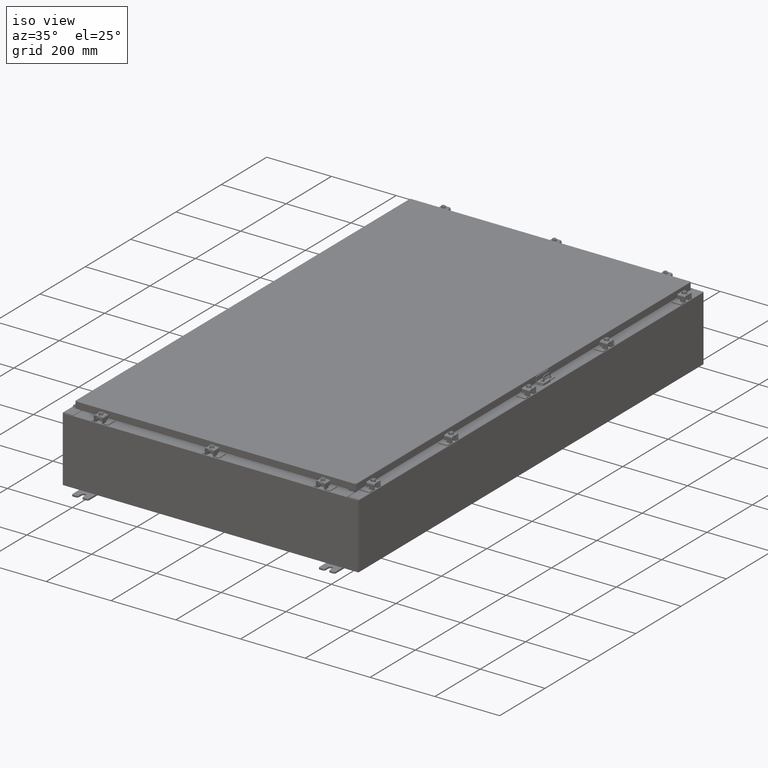
[diagram: clean part render]
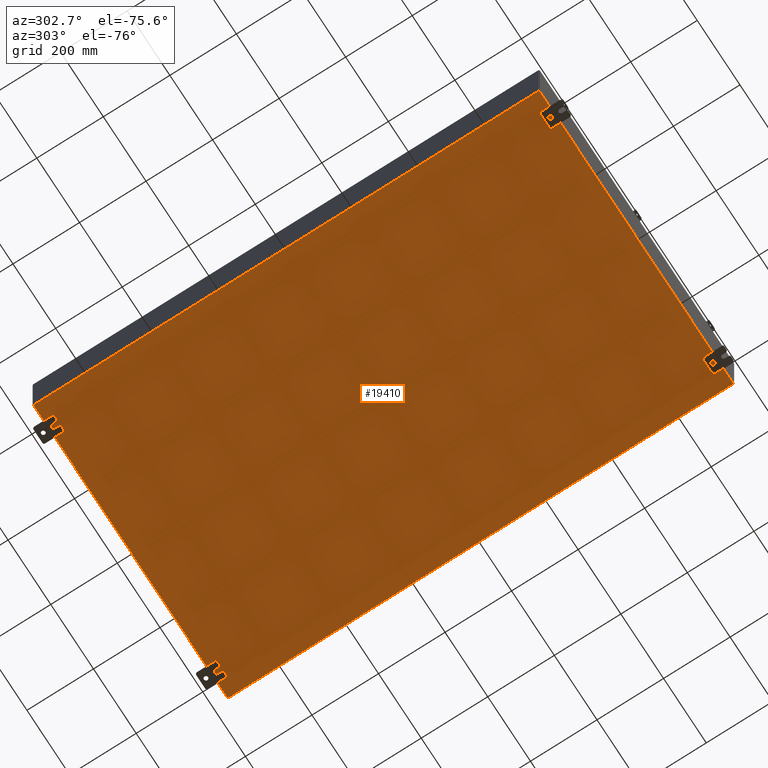
[diagram: tour spotlight — one face highlighted and labeled with its STEP entity id]
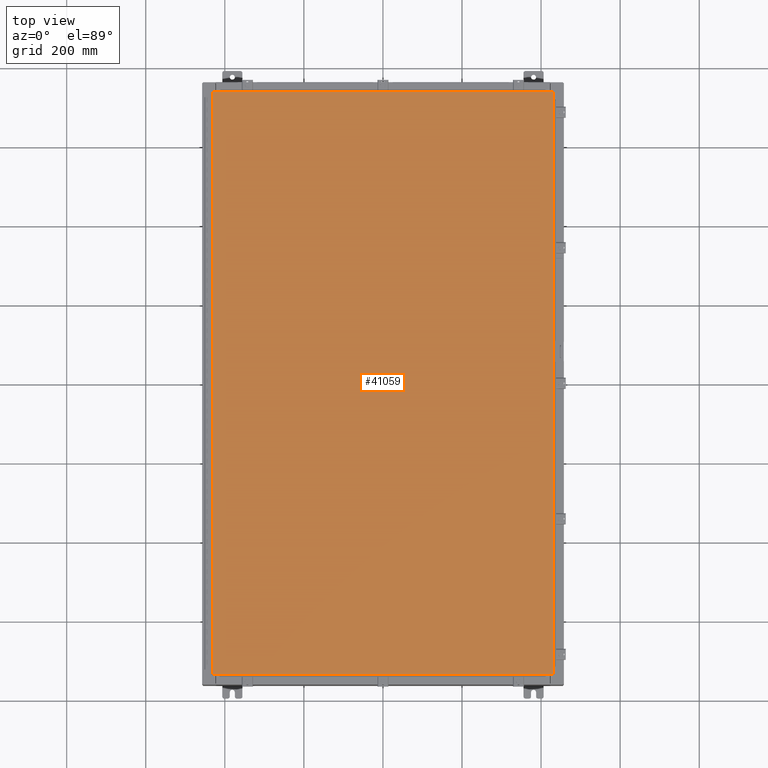
[diagram: tour spotlight — one face highlighted and labeled with its STEP entity id]
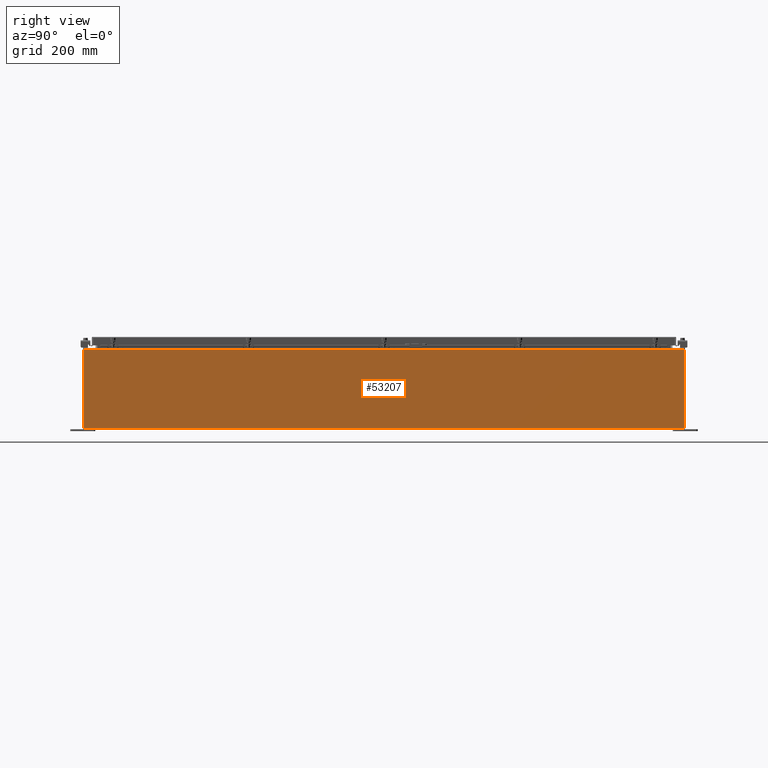
[diagram: tour spotlight — one face highlighted and labeled with its STEP entity id]
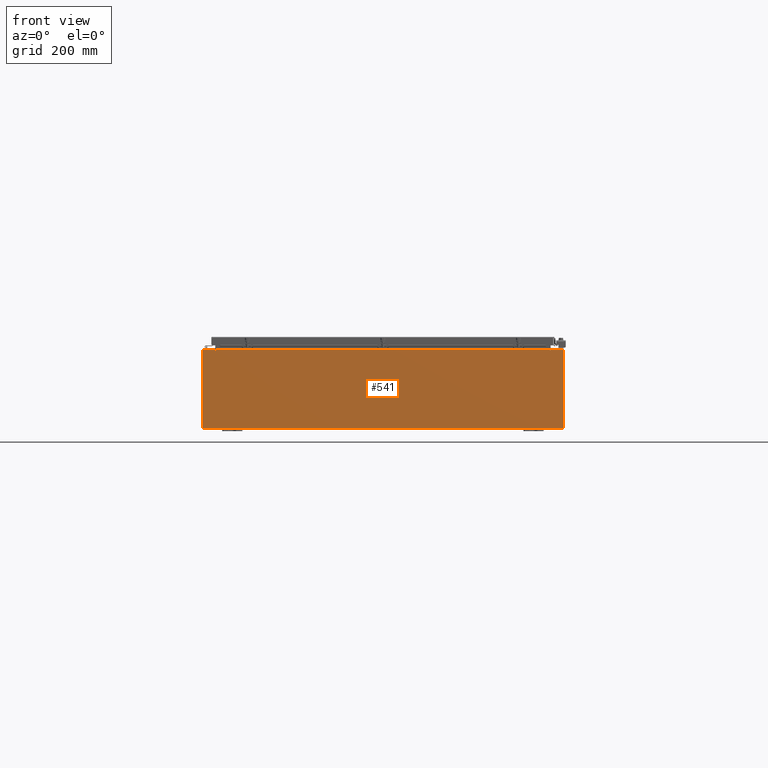
[diagram: tour spotlight — one face highlighted and labeled with its STEP entity id]
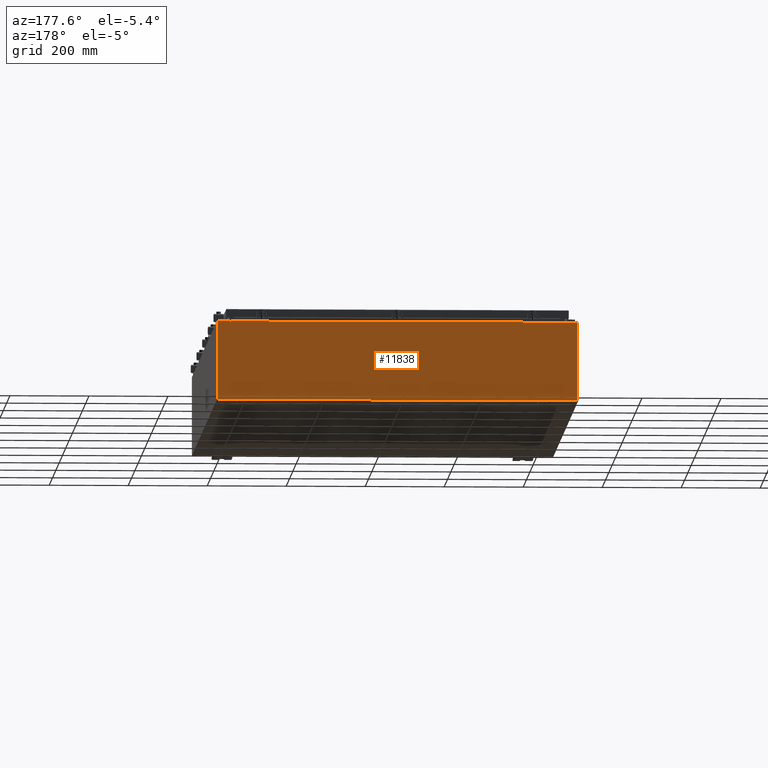
[diagram: tour spotlight — one face highlighted and labeled with its STEP entity id]
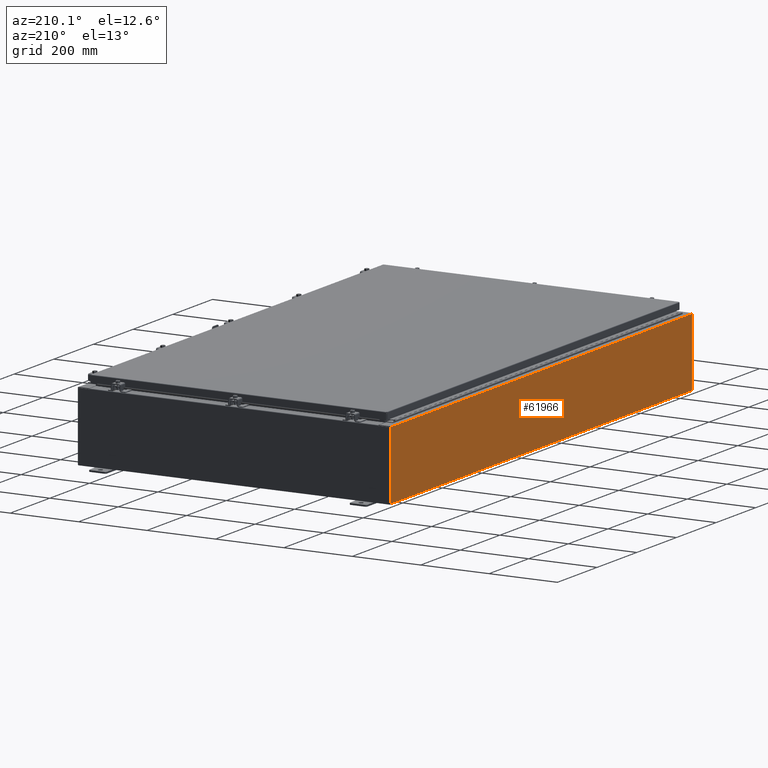
[diagram: tour spotlight — one face highlighted and labeled with its STEP entity id]
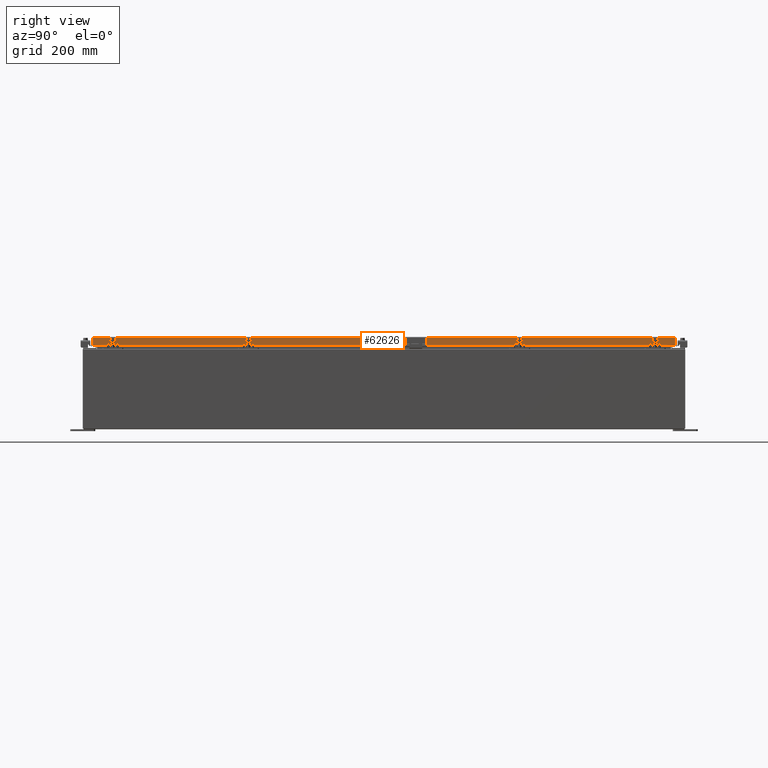
[diagram: tour spotlight — one face highlighted and labeled with its STEP entity id]
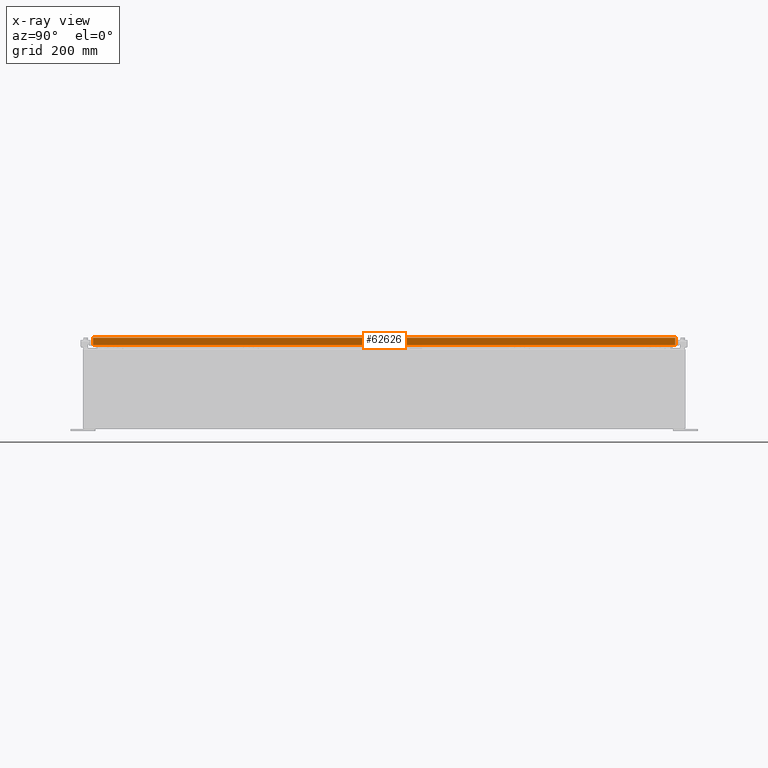
[diagram: x-ray of the same camera — body ghosted, this tour face saturated]
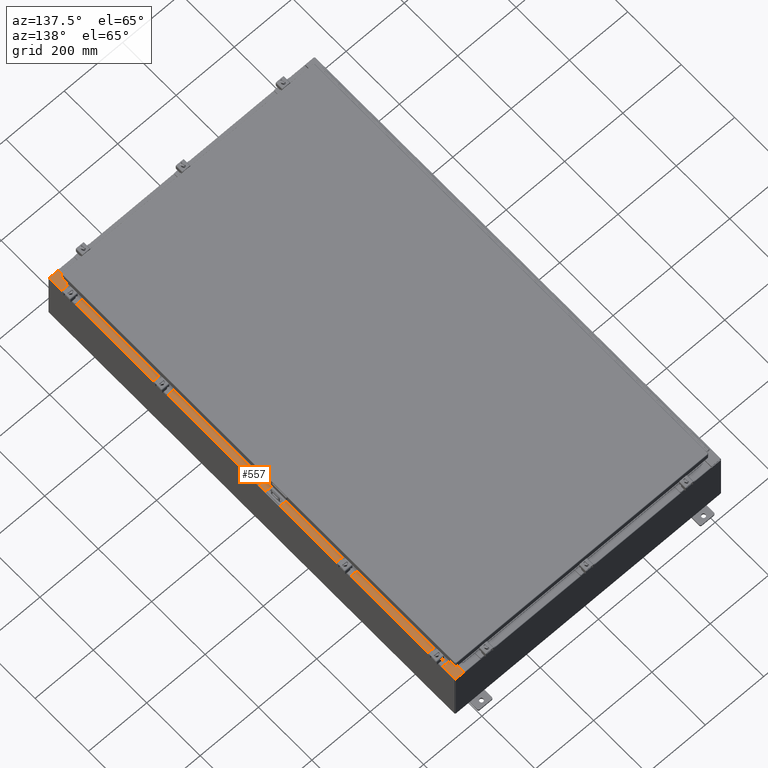
[diagram: tour spotlight — one face highlighted and labeled with its STEP entity id]
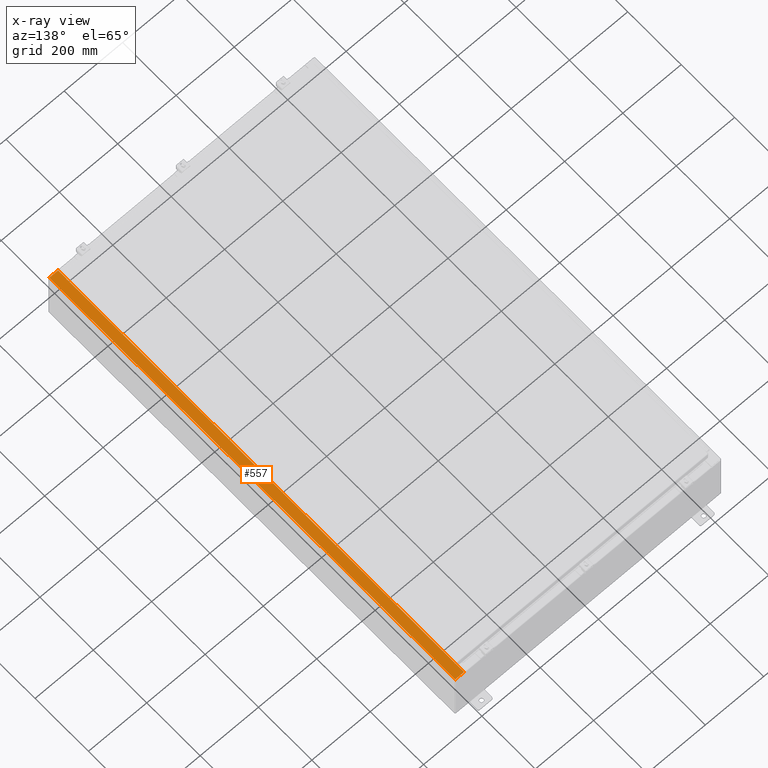
[diagram: x-ray of the same camera — body ghosted, this tour face saturated]
A machine part: a face-by-face anatomy tour. The part has 3554 B-rep faces; the first image is the clean iso view, then the 8 largest visible faces are spotlighted one at a time (largest first), each with its STEP entity span.

Face 1 — auxiliary view, entity #19410. In plain terms, the highlighted planar face has unit normal (0, 0, -1).
Definition (entity closure, byte-faithful):
#28 = CARTESIAN_POINT ( 'NONE',  ( 17.91229999999999800, 29.92529999999999300, -0.07469999999999994700 ) ) ;
#2727 = CARTESIAN_POINT ( 'NONE',  ( -17.91230000000000200, -29.92530000000002100, -0.07469999999999994700 ) ) ;
#3255 = ORIENTED_EDGE ( 'NONE', *, *, #43841, .T. ) ;
#4437 = EDGE_CURVE ( 'NONE', #23879, #46232, #22480, .T. ) ;
#6960 = DIRECTION ( 'NONE',  ( 1.000000000000000000, 0.0000000000000000000, 0.0000000000000000000 ) ) ;
#13811 = EDGE_CURVE ( 'NONE', #45037, #46232, #33790, .T. ) ;
#16174 = VERTEX_POINT ( 'NONE', #50680 ) ;
#17866 = DIRECTION ( 'NONE',  ( -0.0000000000000000000, -1.000000000000000000, -0.0000000000000000000 ) ) ;
#18564 = VECTOR ( 'NONE', #44171, 39.37007874015748100 ) ;
#18823 = VECTOR ( 'NONE', #32811, 39.37007874015748100 ) ;
#19410 = ADVANCED_FACE ( 'NONE', ( #19695 ), #25009, .T. ) ;
#19695 = FACE_OUTER_BOUND ( 'NONE', #20763, .T. ) ;
#20309 = VECTOR ( 'NONE', #6960, 39.37007874015748100 ) ;
#20370 = LINE ( 'NONE', #2727, #18823 ) ;
#20763 = EDGE_LOOP ( 'NONE', ( #22581, #3255, #42395, #27091 ) ) ;
#21057 = DIRECTION ( 'NONE',  ( -1.000000000000000000, 0.0000000000000000000, -0.0000000000000000000 ) ) ;
#22480 = LINE ( 'NONE', #28, #45986 ) ;
#22581 = ORIENTED_EDGE ( 'NONE', *, *, #13811, .F. ) ;
#23879 = VERTEX_POINT ( 'NONE', #25709 ) ;
#25009 = PLANE ( 'NONE',  #62177 ) ;
#25709 = CARTESIAN_POINT ( 'NONE',  ( 17.91229999999999800, 29.92529999999999300, -0.07469999999999994700 ) ) ;
#27091 = ORIENTED_EDGE ( 'NONE', *, *, #4437, .T. ) ;
#32510 = DIRECTION ( 'NONE',  ( 0.0000000000000000000, 0.0000000000000000000, -1.000000000000000000 ) ) ;
#32811 = DIRECTION ( 'NONE',  ( -0.0000000000000000000, 1.000000000000000000, -0.0000000000000000000 ) ) ;
#33790 = LINE ( 'NONE', #48464, #20309 ) ;
#42395 = ORIENTED_EDGE ( 'NONE', *, *, #61155, .F. ) ;
#43841 = EDGE_CURVE ( 'NONE', #45037, #16174, #20370, .T. ) ;
#43959 = CARTESIAN_POINT ( 'NONE',  ( -18.00000000000000400, 29.92529999999998900, -0.07470000000000000300 ) ) ;
#44171 = DIRECTION ( 'NONE',  ( -1.000000000000000000, -0.0000000000000000000, -0.0000000000000000000 ) ) ;
#45037 = VERTEX_POINT ( 'NONE', #57387 ) ;
#45986 = VECTOR ( 'NONE', #17866, 39.37007874015748100 ) ;
#46232 = VERTEX_POINT ( 'NONE', #52482 ) ;
#47414 = CARTESIAN_POINT ( 'NONE',  ( 0.0000000000000000000, 0.0000000000000000000, -0.07470000000000000300 ) ) ;
#48464 = CARTESIAN_POINT ( 'NONE',  ( -18.00000000000000400, -29.92530000000001100, -0.07470000000000000300 ) ) ;
#50680 = CARTESIAN_POINT ( 'NONE',  ( -17.91230000000000200, 29.92529999999998600, -0.07470000000000000300 ) ) ;
#52482 = CARTESIAN_POINT ( 'NONE',  ( 17.91229999999999800, -29.92530000000001100, -0.07470000000000000300 ) ) ;
#57387 = CARTESIAN_POINT ( 'NONE',  ( -17.91230000000000200, -29.92530000000001100, -0.07469999999999994700 ) ) ;
#58204 = LINE ( 'NONE', #43959, #18564 ) ;
#61155 = EDGE_CURVE ( 'NONE', #23879, #16174, #58204, .T. ) ;
#62177 = AXIS2_PLACEMENT_3D ( 'NONE', #47414, #32510, #21057 ) ;

Face 2 — top view, entity #41059. In plain terms, the highlighted planar face has unit normal (0, 0, -1).
Definition (entity closure, byte-faithful):
#1642 = CARTESIAN_POINT ( 'NONE',  ( 16.99030000000000500, 29.00630000000000300, 1.946441695485787500E-015 ) ) ;
#1652 = EDGE_CURVE ( 'NONE', #11001, #23436, #6101, .T. ) ;
#2026 = LINE ( 'NONE', #45647, #42047 ) ;
#3547 = PLANE ( 'NONE',  #18414 ) ;
#3768 = DIRECTION ( 'NONE',  ( -1.000000000000000000, 0.0000000000000000000, -0.0000000000000000000 ) ) ;
#4647 = ORIENTED_EDGE ( 'NONE', *, *, #52636, .T. ) ;
#6101 = LINE ( 'NONE', #61782, #57400 ) ;
#6943 = FACE_OUTER_BOUND ( 'NONE', #45324, .T. ) ;
#9593 = ORIENTED_EDGE ( 'NONE', *, *, #13901, .T. ) ;
#11001 = VERTEX_POINT ( 'NONE', #60510 ) ;
#13901 = EDGE_CURVE ( 'NONE', #40224, #32867, #45411, .T. ) ;
#15098 = DIRECTION ( 'NONE',  ( 1.000000000000000000, -0.0000000000000000000, -0.0000000000000000000 ) ) ;
#15669 = DIRECTION ( 'NONE',  ( 0.0000000000000000000, 1.000000000000000000, 0.0000000000000000000 ) ) ;
#18414 = AXIS2_PLACEMENT_3D ( 'NONE', #28789, #33843, #3768 ) ;
#20163 = VECTOR ( 'NONE', #51014, 39.37007874015748100 ) ;
#21166 = CARTESIAN_POINT ( 'NONE',  ( -16.99029999999998400, 29.00630000000000000, 4.166068190338001500E-015 ) ) ;
#23436 = VERTEX_POINT ( 'NONE', #45463 ) ;
#28789 = CARTESIAN_POINT ( 'NONE',  ( 0.0000000000000000000, 0.0000000000000000000, 0.0000000000000000000 ) ) ;
#29197 = EDGE_CURVE ( 'NONE', #32867, #11001, #45269, .T. ) ;
#30664 = VECTOR ( 'NONE', #47702, 39.37007874015748100 ) ;
#31425 = ORIENTED_EDGE ( 'NONE', *, *, #29197, .T. ) ;
#32867 = VERTEX_POINT ( 'NONE', #35158 ) ;
#33843 = DIRECTION ( 'NONE',  ( 0.0000000000000000000, 0.0000000000000000000, -1.000000000000000000 ) ) ;
#34378 = CARTESIAN_POINT ( 'NONE',  ( 16.99030000000000500, 29.00630000000000300, 1.946441695485787500E-015 ) ) ;
#35158 = CARTESIAN_POINT ( 'NONE',  ( -16.99029999999998400, 29.00630000000000000, 4.166068190338001500E-015 ) ) ;
#40224 = VERTEX_POINT ( 'NONE', #1642 ) ;
#41059 = ADVANCED_FACE ( 'NONE', ( #6943 ), #3547, .F. ) ;
#42047 = VECTOR ( 'NONE', #15669, 39.37007874015748100 ) ;
#45269 = LINE ( 'NONE', #21166, #20163 ) ;
#45324 = EDGE_LOOP ( 'NONE', ( #53739, #4647, #9593, #31425 ) ) ;
#45411 = LINE ( 'NONE', #34378, #30664 ) ;
#45463 = CARTESIAN_POINT ( 'NONE',  ( 16.99030000000000500, -29.00630000000000000, -2.048885995248197400E-016 ) ) ;
#45647 = CARTESIAN_POINT ( 'NONE',  ( 16.99030000000000500, -29.00630000000000000, -2.048885995248197400E-016 ) ) ;
#47702 = DIRECTION ( 'NONE',  ( -1.000000000000000000, -0.0000000000000000000, -0.0000000000000000000 ) ) ;
#51014 = DIRECTION ( 'NONE',  ( 0.0000000000000000000, -1.000000000000000000, 0.0000000000000000000 ) ) ;
#52636 = EDGE_CURVE ( 'NONE', #23436, #40224, #2026, .T. ) ;
#53739 = ORIENTED_EDGE ( 'NONE', *, *, #1652, .T. ) ;
#57400 = VECTOR ( 'NONE', #15098, 39.37007874015748100 ) ;
#60510 = CARTESIAN_POINT ( 'NONE',  ( -16.99029999999999800, -29.00630000000000300, 1.946441695485787500E-015 ) ) ;
#61782 = CARTESIAN_POINT ( 'NONE',  ( -16.99029999999999800, -29.00630000000000300, 1.946441695485787500E-015 ) ) ;

Face 3 — right view, entity #53207. In plain terms, the highlighted planar face has unit normal (-1, 0, 0).
Definition (entity closure, byte-faithful):
#37 = ORIENTED_EDGE ( 'NONE', *, *, #55470, .F. ) ;
#2202 = VECTOR ( 'NONE', #35035, 39.37007874015748100 ) ;
#2595 = EDGE_LOOP ( 'NONE', ( #41319, #12576, #37, #15212 ) ) ;
#6715 = VERTEX_POINT ( 'NONE', #55824 ) ;
#9955 = CARTESIAN_POINT ( 'NONE',  ( 17.99999999999999600, 29.92529999999998900, -6.478858477053722900E-014 ) ) ;
#11103 = LINE ( 'NONE', #40080, #2202 ) ;
#12576 = ORIENTED_EDGE ( 'NONE', *, *, #41684, .T. ) ;
#13909 = VECTOR ( 'NONE', #27259, 39.37007874015748100 ) ;
#14997 = DIRECTION ( 'NONE',  ( 3.584876173029202900E-015, 0.0000000000000000000, 1.000000000000000000 ) ) ;
#15212 = ORIENTED_EDGE ( 'NONE', *, *, #38202, .T. ) ;
#15511 = EDGE_CURVE ( 'NONE', #25024, #22772, #27237, .T. ) ;
#18184 = PLANE ( 'NONE',  #54402 ) ;
#20878 = VECTOR ( 'NONE', #43549, 39.37007874015748100 ) ;
#22772 = VERTEX_POINT ( 'NONE', #47742 ) ;
#23206 = DIRECTION ( 'NONE',  ( -1.000000000000000000, 0.0000000000000000000, 3.584876173029202900E-015 ) ) ;
#25017 = VERTEX_POINT ( 'NONE', #54786 ) ;
#25024 = VERTEX_POINT ( 'NONE', #50946 ) ;
#25488 = FACE_OUTER_BOUND ( 'NONE', #2595, .T. ) ;
#27237 = LINE ( 'NONE', #50469, #13909 ) ;
#27259 = DIRECTION ( 'NONE',  ( -0.0000000000000000000, -1.000000000000000000, -0.0000000000000000000 ) ) ;
#30162 = LINE ( 'NONE', #9955, #54831 ) ;
#35035 = DIRECTION ( 'NONE',  ( -0.0000000000000000000, -1.000000000000000000, -0.0000000000000000000 ) ) ;
#38202 = EDGE_CURVE ( 'NONE', #25017, #25024, #30162, .T. ) ;
#38589 = CARTESIAN_POINT ( 'NONE',  ( 17.99999999999999600, -29.92530000000001100, -6.478858477053722900E-014 ) ) ;
#40080 = CARTESIAN_POINT ( 'NONE',  ( 17.99999999999999600, -29.92530000000001100, 0.01299999999999984700 ) ) ;
#41319 = ORIENTED_EDGE ( 'NONE', *, *, #15511, .T. ) ;
#41684 = EDGE_CURVE ( 'NONE', #22772, #6715, #47467, .T. ) ;
#43195 = CARTESIAN_POINT ( 'NONE',  ( 17.99999999999999600, 0.0000000000000000000, -6.478858477053722900E-014 ) ) ;
#43549 = DIRECTION ( 'NONE',  ( -3.584876173029202900E-015, 0.0000000000000000000, -1.000000000000000000 ) ) ;
#47467 = LINE ( 'NONE', #38589, #20878 ) ;
#47742 = CARTESIAN_POINT ( 'NONE',  ( 18.00000000000002500, -29.92530000000001100, 7.837599999999999200 ) ) ;
#50469 = CARTESIAN_POINT ( 'NONE',  ( 18.00000000000002500, 29.92529999999999300, 7.837599999999999200 ) ) ;
#50946 = CARTESIAN_POINT ( 'NONE',  ( 18.00000000000002500, 29.92529999999999300, 7.837599999999999200 ) ) ;
#53207 = ADVANCED_FACE ( 'NONE', ( #25488 ), #18184, .F. ) ;
#54402 = AXIS2_PLACEMENT_3D ( 'NONE', #43195, #23206, #57935 ) ;
#54786 = CARTESIAN_POINT ( 'NONE',  ( 17.99999999999999600, 29.92529999999999300, 0.01299999999999984700 ) ) ;
#54831 = VECTOR ( 'NONE', #14997, 39.37007874015748100 ) ;
#55470 = EDGE_CURVE ( 'NONE', #25017, #6715, #11103, .T. ) ;
#55824 = CARTESIAN_POINT ( 'NONE',  ( 17.99999999999999600, -29.92530000000001100, 0.01299999999999983600 ) ) ;
#57935 = DIRECTION ( 'NONE',  ( 3.584876173029202900E-015, 0.0000000000000000000, 1.000000000000000000 ) ) ;

Face 4 — front view, entity #541. In plain terms, the highlighted planar face has unit normal (-0, 1, -0).
Definition (entity closure, byte-faithful):
#123 = LINE ( 'NONE', #3478, #50076 ) ;
#189 = ORIENTED_EDGE ( 'NONE', *, *, #22008, .F. ) ;
#541 = ADVANCED_FACE ( 'NONE', ( #40737 ), #8727, .F. ) ;
#648 = VECTOR ( 'NONE', #22259, 39.37007874015748100 ) ;
#2194 = VECTOR ( 'NONE', #24623, 39.37007874015748100 ) ;
#2982 = EDGE_CURVE ( 'NONE', #8863, #23914, #40724, .T. ) ;
#3478 = CARTESIAN_POINT ( 'NONE',  ( -17.92529999999999600, 0.0000000000000000000, 3.925300000000000500 ) ) ;
#4490 = CARTESIAN_POINT ( 'NONE',  ( -16.65587499999999800, 0.0000000000000000000, 3.874950000000000100 ) ) ;
#4526 = DIRECTION ( 'NONE',  ( 0.0000000000000000000, -0.0000000000000000000, -1.000000000000000000 ) ) ;
#5131 = CARTESIAN_POINT ( 'NONE',  ( -16.67454999999999600, 0.0000000000000000000, 3.874950000000000100 ) ) ;
#6117 = VERTEX_POINT ( 'NONE', #34470 ) ;
#6347 = DIRECTION ( 'NONE',  ( 0.0000000000000000000, -1.000000000000000000, 0.0000000000000000000 ) ) ;
#7605 = LINE ( 'NONE', #38426, #32733 ) ;
#7778 = LINE ( 'NONE', #8667, #46085 ) ;
#7944 = LINE ( 'NONE', #58216, #19620 ) ;
#8452 = CIRCLE ( 'NONE', #29324, 0.01867499999999949400 ) ;
#8498 = CARTESIAN_POINT ( 'NONE',  ( 0.0000000000000000000, 0.0000000000000000000, 0.0000000000000000000 ) ) ;
#8667 = CARTESIAN_POINT ( 'NONE',  ( 16.67454999999967000, -0.0000000000000000000, -1.447541957108349400E-012 ) ) ;
#8727 = PLANE ( 'NONE',  #43853 ) ;
#8863 = VERTEX_POINT ( 'NONE', #5131 ) ;
#9017 = VECTOR ( 'NONE', #39857, 39.37007874015748100 ) ;
#9498 = DIRECTION ( 'NONE',  ( 0.0000000000000000000, 0.0000000000000000000, -1.000000000000000000 ) ) ;
#12182 = VERTEX_POINT ( 'NONE', #30870 ) ;
#12226 = ORIENTED_EDGE ( 'NONE', *, *, #25873, .T. ) ;
#13352 = DIRECTION ( 'NONE',  ( 1.000000000000000000, 0.0000000000000000000, 0.0000000000000000000 ) ) ;
#13469 = DIRECTION ( 'NONE',  ( -8.681145560800009800E-014, 0.0000000000000000000, -1.000000000000000000 ) ) ;
#14129 = VERTEX_POINT ( 'NONE', #45886 ) ;
#14946 = ORIENTED_EDGE ( 'NONE', *, *, #17637, .F. ) ;
#15235 = CARTESIAN_POINT ( 'NONE',  ( -17.92529999999999600, 0.0000000000000000000, 3.925300000000000500 ) ) ;
#15544 = LINE ( 'NONE', #57504, #2194 ) ;
#17637 = EDGE_CURVE ( 'NONE', #36255, #47089, #22245, .T. ) ;
#18528 = AXIS2_PLACEMENT_3D ( 'NONE', #4490, #39592, #9498 ) ;
#19620 = VECTOR ( 'NONE', #28642, 39.37007874015748100 ) ;
#20257 = VECTOR ( 'NONE', #38808, 39.37007874015748100 ) ;
#20813 = VERTEX_POINT ( 'NONE', #15235 ) ;
#22008 = EDGE_CURVE ( 'NONE', #12182, #56578, #7778, .T. ) ;
#22245 = LINE ( 'NONE', #36937, #9017 ) ;
#22259 = DIRECTION ( 'NONE',  ( 0.0000000000000000000, 0.0000000000000000000, 1.000000000000000000 ) ) ;
#22320 = EDGE_CURVE ( 'NONE', #23006, #14129, #15544, .T. ) ;
#22465 = CIRCLE ( 'NONE', #18528, 0.01867499999999949400 ) ;
#22501 = ORIENTED_EDGE ( 'NONE', *, *, #22680, .F. ) ;
#22632 = CARTESIAN_POINT ( 'NONE',  ( -16.67454999999999600, -0.0000000000000000000, 0.0000000000000000000 ) ) ;
#22680 = EDGE_CURVE ( 'NONE', #56578, #23006, #8452, .T. ) ;
#23006 = VERTEX_POINT ( 'NONE', #23735 ) ;
#23476 = VECTOR ( 'NONE', #45717, 39.37007874015748100 ) ;
#23735 = CARTESIAN_POINT ( 'NONE',  ( 16.63720000000000700, 0.0000000000000000000, 3.874950000000000100 ) ) ;
#23914 = VERTEX_POINT ( 'NONE', #62498 ) ;
#24623 = DIRECTION ( 'NONE',  ( 0.0000000000000000000, 0.0000000000000000000, 1.000000000000000000 ) ) ;
#25100 = LINE ( 'NONE', #26684, #23476 ) ;
#25873 = EDGE_CURVE ( 'NONE', #63220, #33686, #25100, .T. ) ;
#26684 = CARTESIAN_POINT ( 'NONE',  ( 17.92530000000000400, 0.0000000000000000000, 3.925300000000000500 ) ) ;
#28642 = DIRECTION ( 'NONE',  ( -0.0000000000000000000, -0.0000000000000000000, 1.000000000000000000 ) ) ;
#29324 = AXIS2_PLACEMENT_3D ( 'NONE', #45399, #36441, #61712 ) ;
#30870 = CARTESIAN_POINT ( 'NONE',  ( 16.67455000000001100, 0.0000000000000000000, 3.925300000000000500 ) ) ;
#32435 = VECTOR ( 'NONE', #45213, 39.37007874015748100 ) ;
#32733 = VECTOR ( 'NONE', #13352, 39.37007874015748100 ) ;
#33686 = VERTEX_POINT ( 'NONE', #63223 ) ;
#33921 = ORIENTED_EDGE ( 'NONE', *, *, #43375, .T. ) ;
#34322 = EDGE_CURVE ( 'NONE', #47089, #8863, #22465, .T. ) ;
#34470 = CARTESIAN_POINT ( 'NONE',  ( -17.92529999999999600, 0.0000000000000000000, -3.925299999999999100 ) ) ;
#34757 = EDGE_CURVE ( 'NONE', #36255, #14129, #7605, .T. ) ;
#35946 = ORIENTED_EDGE ( 'NONE', *, *, #59376, .T. ) ;
#36255 = VERTEX_POINT ( 'NONE', #53492 ) ;
#36441 = DIRECTION ( 'NONE',  ( -0.0000000000000000000, 1.000000000000000000, -0.0000000000000000000 ) ) ;
#36937 = CARTESIAN_POINT ( 'NONE',  ( -16.63719999999999600, -0.0000000000000000000, 0.0000000000000000000 ) ) ;
#37208 = CARTESIAN_POINT ( 'NONE',  ( 17.92530000000000400, 0.0000000000000000000, 3.925300000000000500 ) ) ;
#38426 = CARTESIAN_POINT ( 'NONE',  ( -16.63719999999999600, 3.756290991288361700E-016, 3.912300000000000100 ) ) ;
#38808 = DIRECTION ( 'NONE',  ( 1.000000000000000000, 0.0000000000000000000, 0.0000000000000000000 ) ) ;
#39592 = DIRECTION ( 'NONE',  ( -0.0000000000000000000, 1.000000000000000000, -0.0000000000000000000 ) ) ;
#39857 = DIRECTION ( 'NONE',  ( 0.0000000000000000000, 0.0000000000000000000, -1.000000000000000000 ) ) ;
#40724 = LINE ( 'NONE', #22632, #648 ) ;
#40737 = FACE_OUTER_BOUND ( 'NONE', #46115, .T. ) ;
#41862 = EDGE_CURVE ( 'NONE', #33686, #6117, #58642, .T. ) ;
#42459 = ORIENTED_EDGE ( 'NONE', *, *, #41862, .T. ) ;
#42756 = ORIENTED_EDGE ( 'NONE', *, *, #34322, .F. ) ;
#43105 = CARTESIAN_POINT ( 'NONE',  ( -16.63719999999999600, -0.0000000000000000000, 3.874950000000000100 ) ) ;
#43375 = EDGE_CURVE ( 'NONE', #12182, #63220, #123, .T. ) ;
#43853 = AXIS2_PLACEMENT_3D ( 'NONE', #8498, #6347, #4526 ) ;
#45213 = DIRECTION ( 'NONE',  ( -1.000000000000000000, -0.0000000000000000000, -0.0000000000000000000 ) ) ;
#45399 = CARTESIAN_POINT ( 'NONE',  ( 16.65587500000000500, 0.0000000000000000000, 3.874950000000000100 ) ) ;
#45444 = ORIENTED_EDGE ( 'NONE', *, *, #49659, .T. ) ;
#45717 = DIRECTION ( 'NONE',  ( 0.0000000000000000000, 0.0000000000000000000, -1.000000000000000000 ) ) ;
#45886 = CARTESIAN_POINT ( 'NONE',  ( 16.63720000000000700, 0.0000000000000000000, 3.912300000000000100 ) ) ;
#46085 = VECTOR ( 'NONE', #13469, 39.37007874015748100 ) ;
#46115 = EDGE_LOOP ( 'NONE', ( #48795, #42756, #14946, #47608, #47116, #22501, #189, #33921, #12226, #42459, #35946, #45444 ) ) ;
#47089 = VERTEX_POINT ( 'NONE', #43105 ) ;
#47116 = ORIENTED_EDGE ( 'NONE', *, *, #22320, .F. ) ;
#47608 = ORIENTED_EDGE ( 'NONE', *, *, #34757, .T. ) ;
#48430 = DIRECTION ( 'NONE',  ( 1.000000000000000000, 0.0000000000000000000, 0.0000000000000000000 ) ) ;
#48795 = ORIENTED_EDGE ( 'NONE', *, *, #2982, .F. ) ;
#49659 = EDGE_CURVE ( 'NONE', #20813, #23914, #56806, .T. ) ;
#50076 = VECTOR ( 'NONE', #48430, 39.37007874015748100 ) ;
#53492 = CARTESIAN_POINT ( 'NONE',  ( -16.63719999999999600, 3.756290991288361700E-016, 3.912300000000000100 ) ) ;
#54658 = CARTESIAN_POINT ( 'NONE',  ( 16.67455000000000700, 0.0000000000000000000, 3.874950000000000100 ) ) ;
#56578 = VERTEX_POINT ( 'NONE', #54658 ) ;
#56806 = LINE ( 'NONE', #63279, #20257 ) ;
#57504 = CARTESIAN_POINT ( 'NONE',  ( 16.63720000000000700, 0.0000000000000000000, 0.0000000000000000000 ) ) ;
#58216 = CARTESIAN_POINT ( 'NONE',  ( -17.92529999999999600, 0.0000000000000000000, 3.925300000000000500 ) ) ;
#58642 = LINE ( 'NONE', #59746, #32435 ) ;
#59376 = EDGE_CURVE ( 'NONE', #6117, #20813, #7944, .T. ) ;
#59746 = CARTESIAN_POINT ( 'NONE',  ( -17.92529999999999600, 0.0000000000000000000, -3.925299999999999100 ) ) ;
#61712 = DIRECTION ( 'NONE',  ( 0.0000000000000000000, 0.0000000000000000000, -1.000000000000000000 ) ) ;
#62498 = CARTESIAN_POINT ( 'NONE',  ( -16.67454999999999600, 0.0000000000000000000, 3.925300000000000500 ) ) ;
#63220 = VERTEX_POINT ( 'NONE', #37208 ) ;
#63223 = CARTESIAN_POINT ( 'NONE',  ( 17.92530000000000400, 0.0000000000000000000, -3.925299999999999100 ) ) ;
#63279 = CARTESIAN_POINT ( 'NONE',  ( -17.92529999999999600, 0.0000000000000000000, 3.925300000000000500 ) ) ;

Face 5 — auxiliary view, entity #11838. In plain terms, the highlighted planar face has unit normal (0, -1, 0).
Definition (entity closure, byte-faithful):
#461 = CARTESIAN_POINT ( 'NONE',  ( 16.63720000000000700, 0.0000000000000000000, 3.874950000000000100 ) ) ;
#1797 = EDGE_LOOP ( 'NONE', ( #62445, #47138, #5456, #40853, #59975, #54656, #51672, #38568, #6232, #30225, #17501, #36004 ) ) ;
#2123 = CIRCLE ( 'NONE', #7478, 0.01867499999999949400 ) ;
#2760 = CARTESIAN_POINT ( 'NONE',  ( -16.67454999999999600, 0.0000000000000000000, 3.874950000000000100 ) ) ;
#3330 = EDGE_CURVE ( 'NONE', #24671, #18222, #10915, .T. ) ;
#4338 = CARTESIAN_POINT ( 'NONE',  ( -16.67454999999999600, -0.0000000000000000000, 0.0000000000000000000 ) ) ;
#4544 = DIRECTION ( 'NONE',  ( 0.0000000000000000000, 0.0000000000000000000, 1.000000000000000000 ) ) ;
#4760 = DIRECTION ( 'NONE',  ( 0.0000000000000000000, -1.000000000000000000, 0.0000000000000000000 ) ) ;
#4779 = VECTOR ( 'NONE', #61761, 39.37007874015748100 ) ;
#5418 = DIRECTION ( 'NONE',  ( 0.0000000000000000000, 0.0000000000000000000, -1.000000000000000000 ) ) ;
#5456 = ORIENTED_EDGE ( 'NONE', *, *, #55518, .F. ) ;
#5705 = CARTESIAN_POINT ( 'NONE',  ( 17.92530000000000400, 0.0000000000000000000, 3.925300000000000500 ) ) ;
#6232 = ORIENTED_EDGE ( 'NONE', *, *, #23246, .T. ) ;
#7171 = VERTEX_POINT ( 'NONE', #7503 ) ;
#7478 = AXIS2_PLACEMENT_3D ( 'NONE', #11601, #57047, #61661 ) ;
#7503 = CARTESIAN_POINT ( 'NONE',  ( 16.63720000000000700, 0.0000000000000000000, 3.912300000000000100 ) ) ;
#8336 = VERTEX_POINT ( 'NONE', #45963 ) ;
#8548 = VERTEX_POINT ( 'NONE', #13918 ) ;
#9683 = VERTEX_POINT ( 'NONE', #461 ) ;
#10915 = LINE ( 'NONE', #17019, #47622 ) ;
#11414 = LINE ( 'NONE', #55001, #62717 ) ;
#11601 = CARTESIAN_POINT ( 'NONE',  ( 16.65587500000000500, 0.0000000000000000000, 3.874950000000000100 ) ) ;
#11838 = ADVANCED_FACE ( 'NONE', ( #21525 ), #12771, .F. ) ;
#11985 = LINE ( 'NONE', #29876, #50191 ) ;
#12579 = AXIS2_PLACEMENT_3D ( 'NONE', #43610, #13588, #48475 ) ;
#12771 = PLANE ( 'NONE',  #51490 ) ;
#13588 = DIRECTION ( 'NONE',  ( -0.0000000000000000000, 1.000000000000000000, -0.0000000000000000000 ) ) ;
#13918 = CARTESIAN_POINT ( 'NONE',  ( 16.67455000000000700, 0.0000000000000000000, 3.874950000000000100 ) ) ;
#14028 = CARTESIAN_POINT ( 'NONE',  ( -16.63719999999999600, 3.756290991288361700E-016, 3.912300000000000100 ) ) ;
#15526 = EDGE_CURVE ( 'NONE', #8548, #9683, #2123, .T. ) ;
#16148 = LINE ( 'NONE', #14028, #54251 ) ;
#16732 = EDGE_CURVE ( 'NONE', #8336, #7171, #16148, .T. ) ;
#17019 = CARTESIAN_POINT ( 'NONE',  ( -17.92529999999999600, 0.0000000000000000000, 3.925300000000000500 ) ) ;
#17501 = ORIENTED_EDGE ( 'NONE', *, *, #48833, .T. ) ;
#18098 = DIRECTION ( 'NONE',  ( 0.0000000000000000000, 0.0000000000000000000, 1.000000000000000000 ) ) ;
#18222 = VERTEX_POINT ( 'NONE', #62379 ) ;
#18312 = CARTESIAN_POINT ( 'NONE',  ( -16.63719999999999600, -0.0000000000000000000, 3.874950000000000100 ) ) ;
#18394 = CARTESIAN_POINT ( 'NONE',  ( 16.67455000000001100, 0.0000000000000000000, 3.925300000000000500 ) ) ;
#18555 = EDGE_CURVE ( 'NONE', #48397, #8548, #11985, .T. ) ;
#18757 = EDGE_CURVE ( 'NONE', #48397, #28136, #54030, .T. ) ;
#19194 = CARTESIAN_POINT ( 'NONE',  ( -17.92529999999999600, 0.0000000000000000000, -3.925299999999999100 ) ) ;
#21275 = VECTOR ( 'NONE', #18098, 39.37007874015748100 ) ;
#21525 = FACE_OUTER_BOUND ( 'NONE', #1797, .T. ) ;
#22493 = CARTESIAN_POINT ( 'NONE',  ( 0.0000000000000000000, 0.0000000000000000000, 0.0000000000000000000 ) ) ;
#23176 = VECTOR ( 'NONE', #53998, 39.37007874015748100 ) ;
#23246 = EDGE_CURVE ( 'NONE', #28136, #46583, #61891, .T. ) ;
#23316 = CARTESIAN_POINT ( 'NONE',  ( -17.92529999999999600, 0.0000000000000000000, 3.925300000000000500 ) ) ;
#24671 = VERTEX_POINT ( 'NONE', #31828 ) ;
#26550 = EDGE_CURVE ( 'NONE', #9683, #7171, #60912, .T. ) ;
#27337 = DIRECTION ( 'NONE',  ( 1.000000000000000000, 0.0000000000000000000, 0.0000000000000000000 ) ) ;
#28136 = VERTEX_POINT ( 'NONE', #62357 ) ;
#29876 = CARTESIAN_POINT ( 'NONE',  ( 16.67454999999967000, -0.0000000000000000000, -1.447541957108349400E-012 ) ) ;
#30225 = ORIENTED_EDGE ( 'NONE', *, *, #46438, .T. ) ;
#31828 = CARTESIAN_POINT ( 'NONE',  ( -17.92529999999999600, 0.0000000000000000000, 3.925300000000000500 ) ) ;
#35616 = DIRECTION ( 'NONE',  ( 0.0000000000000000000, -0.0000000000000000000, -1.000000000000000000 ) ) ;
#36004 = ORIENTED_EDGE ( 'NONE', *, *, #3330, .T. ) ;
#37337 = CARTESIAN_POINT ( 'NONE',  ( -17.92529999999999600, 0.0000000000000000000, -3.925299999999999100 ) ) ;
#38568 = ORIENTED_EDGE ( 'NONE', *, *, #18757, .T. ) ;
#38634 = VERTEX_POINT ( 'NONE', #2760 ) ;
#39532 = CIRCLE ( 'NONE', #12579, 0.01867499999999949400 ) ;
#40853 = ORIENTED_EDGE ( 'NONE', *, *, #16732, .T. ) ;
#41061 = VECTOR ( 'NONE', #45128, 39.37007874015748100 ) ;
#43610 = CARTESIAN_POINT ( 'NONE',  ( -16.65587499999999800, 0.0000000000000000000, 3.874950000000000100 ) ) ;
#44722 = LINE ( 'NONE', #56783, #4779 ) ;
#44937 = DIRECTION ( 'NONE',  ( -8.681145560800009800E-014, 0.0000000000000000000, -1.000000000000000000 ) ) ;
#45128 = DIRECTION ( 'NONE',  ( 1.000000000000000000, 0.0000000000000000000, 0.0000000000000000000 ) ) ;
#45963 = CARTESIAN_POINT ( 'NONE',  ( -16.63719999999999600, 3.756290991288361700E-016, 3.912300000000000100 ) ) ;
#46438 = EDGE_CURVE ( 'NONE', #46583, #63864, #49673, .T. ) ;
#46583 = VERTEX_POINT ( 'NONE', #53365 ) ;
#47138 = ORIENTED_EDGE ( 'NONE', *, *, #62174, .F. ) ;
#47155 = VERTEX_POINT ( 'NONE', #18312 ) ;
#47622 = VECTOR ( 'NONE', #64203, 39.37007874015748100 ) ;
#48397 = VERTEX_POINT ( 'NONE', #18394 ) ;
#48475 = DIRECTION ( 'NONE',  ( 0.0000000000000000000, 0.0000000000000000000, -1.000000000000000000 ) ) ;
#48833 = EDGE_CURVE ( 'NONE', #63864, #24671, #44722, .T. ) ;
#49673 = LINE ( 'NONE', #19194, #23176 ) ;
#50191 = VECTOR ( 'NONE', #44937, 39.37007874015748100 ) ;
#51490 = AXIS2_PLACEMENT_3D ( 'NONE', #22493, #4760, #35616 ) ;
#51672 = ORIENTED_EDGE ( 'NONE', *, *, #18555, .F. ) ;
#52359 = VECTOR ( 'NONE', #4544, 39.37007874015748100 ) ;
#52819 = DIRECTION ( 'NONE',  ( 0.0000000000000000000, 0.0000000000000000000, -1.000000000000000000 ) ) ;
#53365 = CARTESIAN_POINT ( 'NONE',  ( 17.92530000000000400, 0.0000000000000000000, -3.925299999999999100 ) ) ;
#53932 = LINE ( 'NONE', #4338, #52359 ) ;
#53998 = DIRECTION ( 'NONE',  ( -1.000000000000000000, -0.0000000000000000000, -0.0000000000000000000 ) ) ;
#54030 = LINE ( 'NONE', #23316, #41061 ) ;
#54251 = VECTOR ( 'NONE', #27337, 39.37007874015748100 ) ;
#54656 = ORIENTED_EDGE ( 'NONE', *, *, #15526, .F. ) ;
#55001 = CARTESIAN_POINT ( 'NONE',  ( -16.63719999999999600, -0.0000000000000000000, 0.0000000000000000000 ) ) ;
#55394 = EDGE_CURVE ( 'NONE', #38634, #18222, #53932, .T. ) ;
#55518 = EDGE_CURVE ( 'NONE', #8336, #47155, #11414, .T. ) ;
#56783 = CARTESIAN_POINT ( 'NONE',  ( -17.92529999999999600, 0.0000000000000000000, 3.925300000000000500 ) ) ;
#57047 = DIRECTION ( 'NONE',  ( -0.0000000000000000000, 1.000000000000000000, -0.0000000000000000000 ) ) ;
#59975 = ORIENTED_EDGE ( 'NONE', *, *, #26550, .F. ) ;
#60315 = VECTOR ( 'NONE', #52819, 39.37007874015748100 ) ;
#60401 = CARTESIAN_POINT ( 'NONE',  ( 16.63720000000000700, 0.0000000000000000000, 0.0000000000000000000 ) ) ;
#60912 = LINE ( 'NONE', #60401, #21275 ) ;
#61661 = DIRECTION ( 'NONE',  ( 0.0000000000000000000, 0.0000000000000000000, -1.000000000000000000 ) ) ;
#61761 = DIRECTION ( 'NONE',  ( -0.0000000000000000000, -0.0000000000000000000, 1.000000000000000000 ) ) ;
#61891 = LINE ( 'NONE', #5705, #60315 ) ;
#62174 = EDGE_CURVE ( 'NONE', #47155, #38634, #39532, .T. ) ;
#62357 = CARTESIAN_POINT ( 'NONE',  ( 17.92530000000000400, 0.0000000000000000000, 3.925300000000000500 ) ) ;
#62379 = CARTESIAN_POINT ( 'NONE',  ( -16.67454999999999600, 0.0000000000000000000, 3.925300000000000500 ) ) ;
#62445 = ORIENTED_EDGE ( 'NONE', *, *, #55394, .F. ) ;
#62717 = VECTOR ( 'NONE', #5418, 39.37007874015748100 ) ;
#63864 = VERTEX_POINT ( 'NONE', #37337 ) ;
#64203 = DIRECTION ( 'NONE',  ( 1.000000000000000000, 0.0000000000000000000, 0.0000000000000000000 ) ) ;

Face 6 — auxiliary view, entity #61966. In plain terms, the highlighted planar face has unit normal (1, 0, 0).
Definition (entity closure, byte-faithful):
#1063 = CARTESIAN_POINT ( 'NONE',  ( -18.00000000000000400, -29.92530000000001100, 0.01299999999999984700 ) ) ;
#1771 = CARTESIAN_POINT ( 'NONE',  ( -18.00000000000000400, 0.0000000000000000000, -6.478858477053724100E-014 ) ) ;
#3545 = EDGE_CURVE ( 'NONE', #51593, #59665, #48351, .T. ) ;
#8446 = CARTESIAN_POINT ( 'NONE',  ( -18.00000000000000400, 29.92529999999998600, 0.01299999999999983600 ) ) ;
#8852 = DIRECTION ( 'NONE',  ( 0.0000000000000000000, 1.000000000000000000, 0.0000000000000000000 ) ) ;
#10806 = CARTESIAN_POINT ( 'NONE',  ( -18.00000000000000400, 29.92529999999998900, -6.478858477053724100E-014 ) ) ;
#11868 = DIRECTION ( 'NONE',  ( -0.0000000000000000000, 1.000000000000000000, -0.0000000000000000000 ) ) ;
#13134 = VECTOR ( 'NONE', #16080, 39.37007874015748100 ) ;
#13605 = FACE_OUTER_BOUND ( 'NONE', #34616, .T. ) ;
#16006 = LINE ( 'NONE', #29647, #64172 ) ;
#16080 = DIRECTION ( 'NONE',  ( 3.584876173029202900E-015, 0.0000000000000000000, -1.000000000000000000 ) ) ;
#17510 = CARTESIAN_POINT ( 'NONE',  ( -18.00000000000002800, -29.92530000000001800, 7.837599999999999200 ) ) ;
#20819 = ORIENTED_EDGE ( 'NONE', *, *, #50438, .T. ) ;
#21853 = DIRECTION ( 'NONE',  ( 1.000000000000000000, 0.0000000000000000000, 3.584876173029202900E-015 ) ) ;
#28564 = LINE ( 'NONE', #36900, #53272 ) ;
#29647 = CARTESIAN_POINT ( 'NONE',  ( -18.00000000000000400, -29.92530000000001100, -6.478858477053724100E-014 ) ) ;
#30050 = VERTEX_POINT ( 'NONE', #8446 ) ;
#30714 = ORIENTED_EDGE ( 'NONE', *, *, #56522, .T. ) ;
#30804 = EDGE_CURVE ( 'NONE', #48715, #30050, #28564, .T. ) ;
#31451 = CARTESIAN_POINT ( 'NONE',  ( -18.00000000000003200, 29.92529999999998900, 7.837599999999999200 ) ) ;
#34084 = AXIS2_PLACEMENT_3D ( 'NONE', #1771, #21853, #56614 ) ;
#34616 = EDGE_LOOP ( 'NONE', ( #55205, #20819, #52650, #30714 ) ) ;
#35270 = VECTOR ( 'NONE', #8852, 39.37007874015748100 ) ;
#36900 = CARTESIAN_POINT ( 'NONE',  ( -18.00000000000000400, 29.92529999999998900, 0.01299999999999984700 ) ) ;
#39905 = LINE ( 'NONE', #10806, #13134 ) ;
#41901 = PLANE ( 'NONE',  #34084 ) ;
#48351 = LINE ( 'NONE', #17510, #35270 ) ;
#48715 = VERTEX_POINT ( 'NONE', #1063 ) ;
#50438 = EDGE_CURVE ( 'NONE', #59665, #30050, #39905, .T. ) ;
#51593 = VERTEX_POINT ( 'NONE', #63490 ) ;
#52650 = ORIENTED_EDGE ( 'NONE', *, *, #30804, .F. ) ;
#53272 = VECTOR ( 'NONE', #11868, 39.37007874015748100 ) ;
#54227 = DIRECTION ( 'NONE',  ( -3.584876173029202900E-015, 0.0000000000000000000, 1.000000000000000000 ) ) ;
#55205 = ORIENTED_EDGE ( 'NONE', *, *, #3545, .T. ) ;
#56522 = EDGE_CURVE ( 'NONE', #48715, #51593, #16006, .T. ) ;
#56614 = DIRECTION ( 'NONE',  ( 3.584876173029202900E-015, 0.0000000000000000000, -1.000000000000000000 ) ) ;
#59665 = VERTEX_POINT ( 'NONE', #31451 ) ;
#61966 = ADVANCED_FACE ( 'NONE', ( #13605 ), #41901, .F. ) ;
#63490 = CARTESIAN_POINT ( 'NONE',  ( -18.00000000000002800, -29.92530000000001100, 7.837599999999999200 ) ) ;
#64172 = VECTOR ( 'NONE', #54227, 39.37007874015748100 ) ;

Face 7 — right view, entity #62626. An x-ray twin of the same camera follows (body ghosted, this face saturated) — the face is partly hidden behind the body. In plain terms, the highlighted planar face has unit normal (1, 0, 0).
Definition (entity closure, byte-faithful):
#2106 = DIRECTION ( 'NONE',  ( 0.0000000000000000000, -1.000000000000000000, 0.0000000000000000000 ) ) ;
#2339 = PLANE ( 'NONE',  #33674 ) ;
#4359 = DIRECTION ( 'NONE',  ( 0.0000000000000000000, -1.000000000000000000, 0.0000000000000000000 ) ) ;
#6469 = ORIENTED_EDGE ( 'NONE', *, *, #35130, .T. ) ;
#8830 = EDGE_CURVE ( 'NONE', #63401, #60540, #9882, .T. ) ;
#9670 = EDGE_CURVE ( 'NONE', #17469, #48896, #26482, .T. ) ;
#9882 = LINE ( 'NONE', #25435, #62750 ) ;
#10872 = ORIENTED_EDGE ( 'NONE', *, *, #9670, .F. ) ;
#12659 = CARTESIAN_POINT ( 'NONE',  ( 17.07799999999999600, -28.25515786437625800, -0.8500000000000016400 ) ) ;
#13313 = EDGE_CURVE ( 'NONE', #63401, #17469, #46970, .T. ) ;
#14740 = VECTOR ( 'NONE', #32356, 39.37007874015748100 ) ;
#17469 = VERTEX_POINT ( 'NONE', #19819 ) ;
#17867 = EDGE_CURVE ( 'NONE', #48896, #25994, #34926, .T. ) ;
#18825 = VECTOR ( 'NONE', #21533, 39.37007874015748100 ) ;
#19599 = CARTESIAN_POINT ( 'NONE',  ( 17.07800000000000300, 29.00515786437626500, -0.08770000000000007000 ) ) ;
#19819 = CARTESIAN_POINT ( 'NONE',  ( 17.07799999999999600, 28.25515786437626200, -0.8500000000000016400 ) ) ;
#21533 = DIRECTION ( 'NONE',  ( 0.0000000000000000000, -1.000000000000000000, 0.0000000000000000000 ) ) ;
#22700 = CARTESIAN_POINT ( 'NONE',  ( 17.07800000000000300, -29.00515786437626500, -0.08770000000000007000 ) ) ;
#25435 = CARTESIAN_POINT ( 'NONE',  ( 17.07800000000000300, 29.00515786437626500, 2.509435972240157400E-013 ) ) ;
#25994 = VERTEX_POINT ( 'NONE', #46492 ) ;
#26482 = LINE ( 'NONE', #38266, #14740 ) ;
#26931 = ORIENTED_EDGE ( 'NONE', *, *, #17867, .F. ) ;
#27121 = CARTESIAN_POINT ( 'NONE',  ( 17.07800000000000300, 0.0000000000000000000, -0.08770000000000007000 ) ) ;
#27579 = CARTESIAN_POINT ( 'NONE',  ( 17.07800000000000300, 0.0000000000000000000, 4.840166239667796000E-014 ) ) ;
#29032 = CARTESIAN_POINT ( 'NONE',  ( 17.07800000000000300, -29.00515786437626500, -0.07469999999999978000 ) ) ;
#29352 = DIRECTION ( 'NONE',  ( -2.818880942772360100E-015, -6.982962677686265900E-015, 1.000000000000000000 ) ) ;
#29863 = EDGE_LOOP ( 'NONE', ( #49236, #26931, #10872, #49962, #43330, #6469 ) ) ;
#30160 = CARTESIAN_POINT ( 'NONE',  ( 17.07800000000000700, -29.09400000000000100, -0.8499999999999996400 ) ) ;
#32356 = DIRECTION ( 'NONE',  ( 0.0000000000000000000, -1.000000000000000000, 0.0000000000000000000 ) ) ;
#32661 = DIRECTION ( 'NONE',  ( 2.818880942772360100E-015, 0.0000000000000000000, -1.000000000000000000 ) ) ;
#33674 = AXIS2_PLACEMENT_3D ( 'NONE', #27579, #62156, #32661 ) ;
#34926 = LINE ( 'NONE', #62889, #59520 ) ;
#35130 = EDGE_CURVE ( 'NONE', #60540, #64380, #63526, .T. ) ;
#38266 = CARTESIAN_POINT ( 'NONE',  ( 17.07799999999999600, 28.25515786437627600, -0.8500000000000016400 ) ) ;
#43330 = ORIENTED_EDGE ( 'NONE', *, *, #8830, .T. ) ;
#45302 = VECTOR ( 'NONE', #63360, 39.37007874015748100 ) ;
#46492 = CARTESIAN_POINT ( 'NONE',  ( 17.07800000000000700, -29.00515786437626200, -0.8499999999999996400 ) ) ;
#46970 = LINE ( 'NONE', #30160, #18825 ) ;
#48896 = VERTEX_POINT ( 'NONE', #12659 ) ;
#49236 = ORIENTED_EDGE ( 'NONE', *, *, #50869, .F. ) ;
#49962 = ORIENTED_EDGE ( 'NONE', *, *, #13313, .F. ) ;
#50869 = EDGE_CURVE ( 'NONE', #25994, #64380, #58314, .T. ) ;
#50887 = FACE_OUTER_BOUND ( 'NONE', #29863, .T. ) ;
#53463 = CARTESIAN_POINT ( 'NONE',  ( 17.07800000000000700, 29.00515786437627200, -0.8499999999999996400 ) ) ;
#58314 = LINE ( 'NONE', #29032, #45302 ) ;
#59520 = VECTOR ( 'NONE', #4359, 39.37007874015748100 ) ;
#60540 = VERTEX_POINT ( 'NONE', #19599 ) ;
#61968 = VECTOR ( 'NONE', #2106, 39.37007874015748100 ) ;
#62156 = DIRECTION ( 'NONE',  ( 1.000000000000000000, 0.0000000000000000000, 2.818880942772360100E-015 ) ) ;
#62626 = ADVANCED_FACE ( 'NONE', ( #50887 ), #2339, .T. ) ;
#62750 = VECTOR ( 'NONE', #29352, 39.37007874015748100 ) ;
#62889 = CARTESIAN_POINT ( 'NONE',  ( 17.07800000000000700, -29.09400000000000100, -0.8499999999999996400 ) ) ;
#63360 = DIRECTION ( 'NONE',  ( -2.818880942772360100E-015, -6.982962677686265900E-015, 1.000000000000000000 ) ) ;
#63401 = VERTEX_POINT ( 'NONE', #53463 ) ;
#63526 = LINE ( 'NONE', #27121, #61968 ) ;
#64380 = VERTEX_POINT ( 'NONE', #22700 ) ;

Face 8 — auxiliary view, entity #557. An x-ray twin of the same camera follows (body ghosted, this face saturated) — the face is partly hidden behind the body. In plain terms, the highlighted planar face has unit normal (-0, -0, -1).
Definition (entity closure, byte-faithful):
#557 = ADVANCED_FACE ( 'NONE', ( #24133 ), #19769, .F. ) ;
#1755 = CARTESIAN_POINT ( 'NONE',  ( 16.69970000000002800, -29.92530000000001100, 7.925300000000009800 ) ) ;
#2007 = ORIENTED_EDGE ( 'NONE', *, *, #43637, .F. ) ;
#2283 = ORIENTED_EDGE ( 'NONE', *, *, #34415, .T. ) ;
#3379 = LINE ( 'NONE', #39665, #41819 ) ;
#4024 = CARTESIAN_POINT ( 'NONE',  ( 17.91230000000002300, -29.92530000000001100, 7.925300000000000900 ) ) ;
#4519 = VERTEX_POINT ( 'NONE', #6525 ) ;
#4634 = VERTEX_POINT ( 'NONE', #23782 ) ;
#4793 = DIRECTION ( 'NONE',  ( 1.000000000000000000, 0.0000000000000000000, 0.0000000000000000000 ) ) ;
#4939 = VERTEX_POINT ( 'NONE', #41166 ) ;
#5038 = EDGE_CURVE ( 'NONE', #50850, #54284, #57397, .T. ) ;
#5699 = CARTESIAN_POINT ( 'NONE',  ( 16.75005000000003000, -28.61242500000000900, 7.925300000000008900 ) ) ;
#5908 = DIRECTION ( 'NONE',  ( 1.000000000000000000, 0.0000000000000000000, 0.0000000000000000000 ) ) ;
#6110 = VERTEX_POINT ( 'NONE', #29361 ) ;
#6525 = CARTESIAN_POINT ( 'NONE',  ( 16.69970000000002800, -28.63110000000000700, 7.925300000000008900 ) ) ;
#6719 = DIRECTION ( 'NONE',  ( 6.241167087353086200E-015, 1.825778183452973300E-017, 1.000000000000000000 ) ) ;
#6809 = CARTESIAN_POINT ( 'NONE',  ( 16.71270000000003000, 28.59374999999999600, 7.925300000000008900 ) ) ;
#7145 = CARTESIAN_POINT ( 'NONE',  ( 16.75005000000003000, 28.61242499999999500, 7.925300000000008900 ) ) ;
#7187 = CARTESIAN_POINT ( 'NONE',  ( 16.75005000000003000, -28.59375000000001100, 7.925300000000008900 ) ) ;
#9360 = EDGE_CURVE ( 'NONE', #6110, #30288, #48336, .T. ) ;
#9437 = VECTOR ( 'NONE', #42120, 39.37007874015748100 ) ;
#9950 = EDGE_CURVE ( 'NONE', #51770, #64299, #25658, .T. ) ;
#10661 = DIRECTION ( 'NONE',  ( 1.000000000000000000, 0.0000000000000000000, 0.0000000000000000000 ) ) ;
#10861 = DIRECTION ( 'NONE',  ( -1.000000000000000000, 0.0000000000000000000, 6.241167087353086200E-015 ) ) ;
#11076 = AXIS2_PLACEMENT_3D ( 'NONE', #5699, #40757, #10661 ) ;
#12944 = DIRECTION ( 'NONE',  ( 1.000000000000000000, 0.0000000000000000000, -6.241167087353087800E-015 ) ) ;
#13979 = ORIENTED_EDGE ( 'NONE', *, *, #26982, .T. ) ;
#14676 = CARTESIAN_POINT ( 'NONE',  ( 4.972393517341169600E-014, -29.92530000000001100, 7.925300000000113700 ) ) ;
#14680 = VECTOR ( 'NONE', #60075, 39.37007874015748100 ) ;
#16740 = CARTESIAN_POINT ( 'NONE',  ( 16.75005000000003000, 28.63109999999999600, 7.925300000000007100 ) ) ;
#17357 = LINE ( 'NONE', #7187, #40971 ) ;
#18179 = EDGE_LOOP ( 'NONE', ( #2007, #57092, #13979, #18228, #47885, #2283, #22955, #24183, #30793, #36203, #50375, #54870 ) ) ;
#18228 = ORIENTED_EDGE ( 'NONE', *, *, #57279, .F. ) ;
#18858 = CARTESIAN_POINT ( 'NONE',  ( 16.69970000000002800, 1.446983983731986500E-016, 7.925300000000008900 ) ) ;
#19769 = PLANE ( 'NONE',  #53590 ) ;
#20164 = CARTESIAN_POINT ( 'NONE',  ( 16.69970000000002800, 29.92529999999999300, 7.925300000000008900 ) ) ;
#20207 = VECTOR ( 'NONE', #63232, 39.37007874015748100 ) ;
#20246 = CARTESIAN_POINT ( 'NONE',  ( 16.71270000000003000, -28.59375000000001100, 7.925300000000008900 ) ) ;
#21379 = VERTEX_POINT ( 'NONE', #43374 ) ;
#22130 = CARTESIAN_POINT ( 'NONE',  ( 16.71270000000003000, -28.59375000000001400, 7.925300000000008900 ) ) ;
#22469 = VECTOR ( 'NONE', #54916, 39.37007874015748100 ) ;
#22820 = VECTOR ( 'NONE', #12944, 39.37007874015748100 ) ;
#22955 = ORIENTED_EDGE ( 'NONE', *, *, #57948, .F. ) ;
#23782 = CARTESIAN_POINT ( 'NONE',  ( 16.69970000000002800, 28.63109999999998900, 7.925300000000008900 ) ) ;
#24133 = FACE_OUTER_BOUND ( 'NONE', #18179, .T. ) ;
#24183 = ORIENTED_EDGE ( 'NONE', *, *, #5038, .F. ) ;
#25658 = LINE ( 'NONE', #22130, #22469 ) ;
#26982 = EDGE_CURVE ( 'NONE', #31257, #28917, #49332, .T. ) ;
#27398 = CARTESIAN_POINT ( 'NONE',  ( 4.972393517341169600E-014, 29.92529999999999300, 7.925300000000111900 ) ) ;
#28917 = VERTEX_POINT ( 'NONE', #4024 ) ;
#29361 = CARTESIAN_POINT ( 'NONE',  ( 17.91230000000002300, 29.92529999999999300, 7.925300000000000000 ) ) ;
#29704 = CARTESIAN_POINT ( 'NONE',  ( 16.75005000000003000, 28.63109999999999600, 7.925300000000008900 ) ) ;
#29721 = EDGE_CURVE ( 'NONE', #4939, #21379, #38815, .T. ) ;
#30288 = VERTEX_POINT ( 'NONE', #20164 ) ;
#30793 = ORIENTED_EDGE ( 'NONE', *, *, #44053, .F. ) ;
#31257 = VERTEX_POINT ( 'NONE', #1755 ) ;
#31892 = EDGE_CURVE ( 'NONE', #21379, #51770, #17357, .T. ) ;
#32099 = CARTESIAN_POINT ( 'NONE',  ( 16.71270000000003000, 28.59374999999999600, 7.925300000000008900 ) ) ;
#34106 = DIRECTION ( 'NONE',  ( 0.0000000000000000000, -1.000000000000000000, 1.825778183452973300E-017 ) ) ;
#34415 = EDGE_CURVE ( 'NONE', #30288, #4634, #55879, .T. ) ;
#35847 = EDGE_CURVE ( 'NONE', #4519, #31257, #54373, .T. ) ;
#36203 = ORIENTED_EDGE ( 'NONE', *, *, #9950, .F. ) ;
#38815 = CIRCLE ( 'NONE', #11076, 0.01867499999999949400 ) ;
#38895 = CARTESIAN_POINT ( 'NONE',  ( 16.75005000000003000, 28.59374999999999600, 7.925300000000007100 ) ) ;
#39665 = CARTESIAN_POINT ( 'NONE',  ( 17.91230000000002300, -29.92530000000001100, 7.925300000000000900 ) ) ;
#40757 = DIRECTION ( 'NONE',  ( 6.241167087353086200E-015, 1.825778183452973300E-017, 1.000000000000000000 ) ) ;
#40971 = VECTOR ( 'NONE', #42017, 39.37007874015748100 ) ;
#41166 = CARTESIAN_POINT ( 'NONE',  ( 16.75005000000003000, -28.63110000000000700, 7.925300000000008900 ) ) ;
#41819 = VECTOR ( 'NONE', #64111, 39.37007874015748100 ) ;
#42017 = DIRECTION ( 'NONE',  ( -1.000000000000000000, 0.0000000000000000000, 0.0000000000000000000 ) ) ;
#42120 = DIRECTION ( 'NONE',  ( 1.000000000000000000, 0.0000000000000000000, 0.0000000000000000000 ) ) ;
#43374 = CARTESIAN_POINT ( 'NONE',  ( 16.75005000000003000, -28.59375000000001100, 7.925300000000007100 ) ) ;
#43637 = EDGE_CURVE ( 'NONE', #4519, #4939, #59265, .T. ) ;
#44053 = EDGE_CURVE ( 'NONE', #64299, #50850, #62305, .T. ) ;
#45564 = LINE ( 'NONE', #29704, #57021 ) ;
#47885 = ORIENTED_EDGE ( 'NONE', *, *, #9360, .T. ) ;
#48336 = LINE ( 'NONE', #27398, #20207 ) ;
#49332 = LINE ( 'NONE', #14676, #22820 ) ;
#50375 = ORIENTED_EDGE ( 'NONE', *, *, #31892, .F. ) ;
#50496 = CARTESIAN_POINT ( 'NONE',  ( 16.69970000000002800, -28.63110000000000700, 7.925300000000008900 ) ) ;
#50710 = DIRECTION ( 'NONE',  ( -6.241167087353086200E-015, -1.825778183452973300E-017, -1.000000000000000000 ) ) ;
#50850 = VERTEX_POINT ( 'NONE', #38895 ) ;
#51770 = VERTEX_POINT ( 'NONE', #20246 ) ;
#53590 = AXIS2_PLACEMENT_3D ( 'NONE', #60607, #50710, #10861 ) ;
#53805 = AXIS2_PLACEMENT_3D ( 'NONE', #7145, #6719, #4793 ) ;
#54276 = DIRECTION ( 'NONE',  ( -1.000000000000000000, 0.0000000000000000000, 0.0000000000000000000 ) ) ;
#54284 = VERTEX_POINT ( 'NONE', #16740 ) ;
#54373 = LINE ( 'NONE', #18858, #64441 ) ;
#54870 = ORIENTED_EDGE ( 'NONE', *, *, #29721, .F. ) ;
#54916 = DIRECTION ( 'NONE',  ( -0.0000000000000000000, 1.000000000000000000, -0.0000000000000000000 ) ) ;
#55133 = CARTESIAN_POINT ( 'NONE',  ( 16.69970000000002800, 1.446983983731986500E-016, 7.925300000000008900 ) ) ;
#55879 = LINE ( 'NONE', #55133, #14680 ) ;
#57021 = VECTOR ( 'NONE', #54276, 39.37007874015748100 ) ;
#57092 = ORIENTED_EDGE ( 'NONE', *, *, #35847, .T. ) ;
#57279 = EDGE_CURVE ( 'NONE', #6110, #28917, #3379, .T. ) ;
#57397 = CIRCLE ( 'NONE', #53805, 0.01867499999999949400 ) ;
#57948 = EDGE_CURVE ( 'NONE', #54284, #4634, #45564, .T. ) ;
#59265 = LINE ( 'NONE', #50496, #60809 ) ;
#60075 = DIRECTION ( 'NONE',  ( 0.0000000000000000000, -1.000000000000000000, 1.825778183452973300E-017 ) ) ;
#60607 = CARTESIAN_POINT ( 'NONE',  ( 4.972393517341169600E-014, 1.446983983732005500E-016, 7.925300000000111900 ) ) ;
#60809 = VECTOR ( 'NONE', #5908, 39.37007874015748100 ) ;
#62305 = LINE ( 'NONE', #32099, #9437 ) ;
#63232 = DIRECTION ( 'NONE',  ( -1.000000000000000000, 0.0000000000000000000, 6.241167087353087800E-015 ) ) ;
#64111 = DIRECTION ( 'NONE',  ( -0.0000000000000000000, -1.000000000000000000, 1.825778183452973300E-017 ) ) ;
#64299 = VERTEX_POINT ( 'NONE', #6809 ) ;
#64441 = VECTOR ( 'NONE', #34106, 39.37007874015748100 ) ;